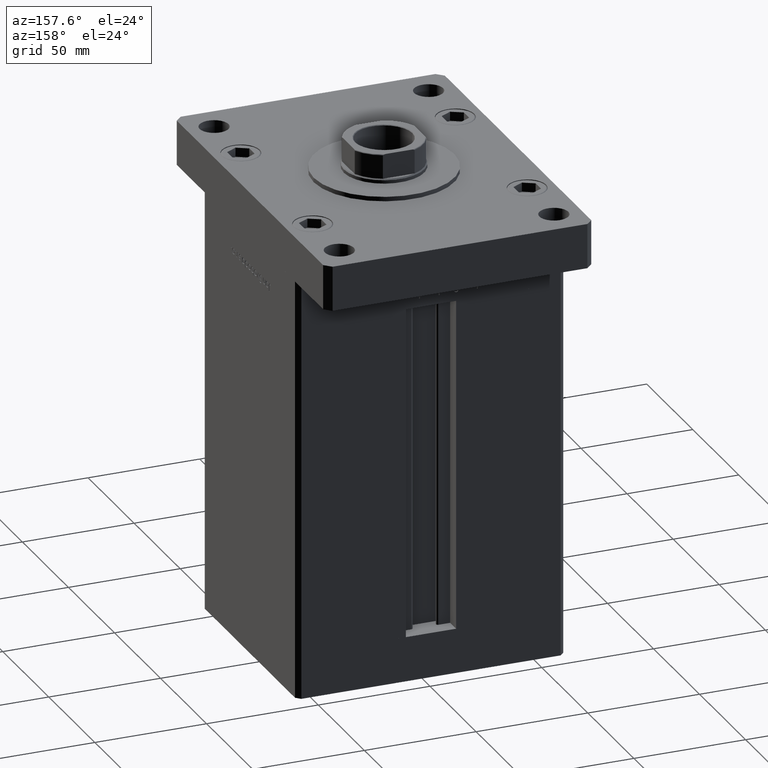
[diagram: clean part render]
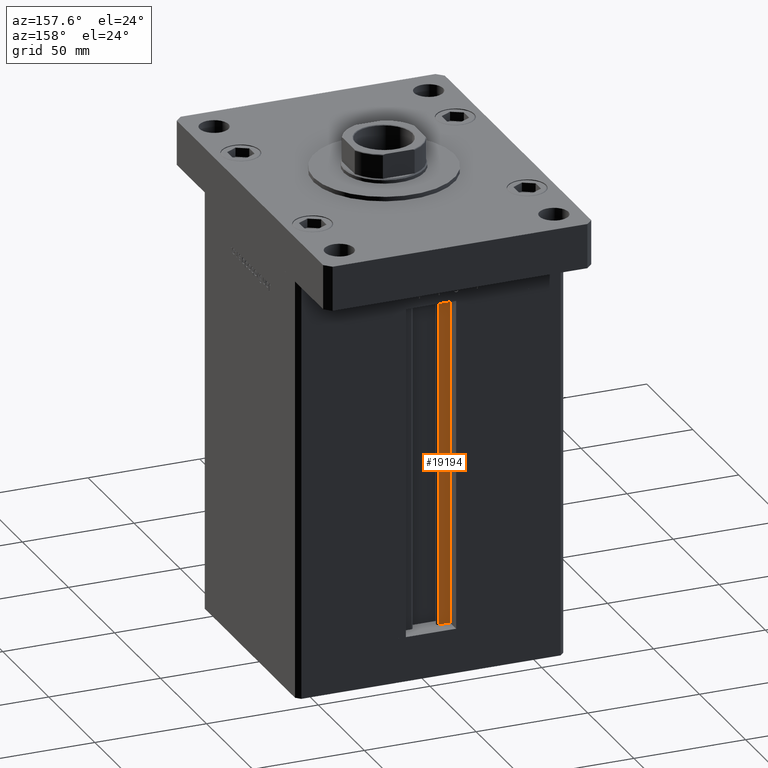
[diagram: same view with one face highlighted and labeled with its STEP entity id]
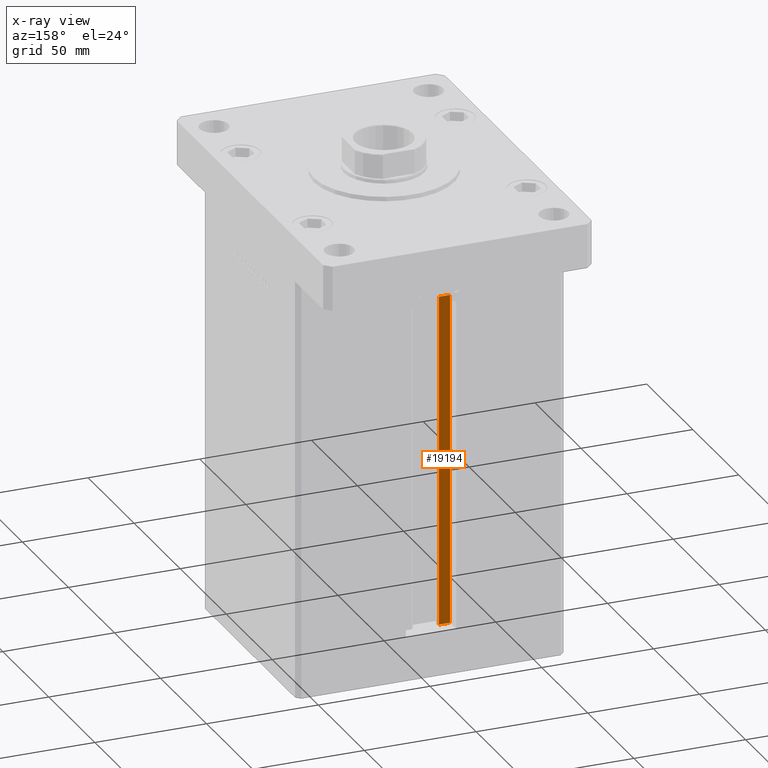
[diagram: x-ray of the same camera — body ghosted, the highlighted face saturated]
A machine part, auxiliary view. The second image highlights one B-rep face of the part: STEP entity #19194.
The next image is the same camera in x-ray: the body ghosted, the highlighted face saturated — about 0% of this face is hidden behind the body in this view.
In plain terms, the highlighted planar face has unit normal (0, -1, 0).
Its self-contained STEP definition (entity closure, byte-faithful):
#337 = VERTEX_POINT ( 'NONE', #6273 ) ;
#747 = DIRECTION ( 'NONE',  ( 0.000000000000000000, -1.000000000000000000, -0.000000000000000000 ) ) ;
#1293 = DIRECTION ( 'NONE',  ( 0.000000000000000000, 0.000000000000000000, -1.000000000000000000 ) ) ;
#1524 = EDGE_CURVE ( 'NONE', #31271, #37693, #30430, .T. ) ;
#5167 = DIRECTION ( 'NONE',  ( -0.000000000000000000, -0.000000000000000000, 1.000000000000000000 ) ) ;
#5675 = DIRECTION ( 'NONE',  ( -0.000000000000000000, -0.000000000000000000, 1.000000000000000000 ) ) ;
#6273 = CARTESIAN_POINT ( 'NONE',  ( -6.183333333334001480, 44.50000000000000000, 148.5000000000000000 ) ) ;
#7406 = LINE ( 'NONE', #27800, #31604 ) ;
#9378 = CARTESIAN_POINT ( 'NONE',  ( -6.183333333334001480, 44.50000000000000000, 0.000000000000000000 ) ) ;
#9461 = FACE_OUTER_BOUND ( 'NONE', #47717, .T. ) ;
#9711 = CARTESIAN_POINT ( 'NONE',  ( -6.183333333334001480, 44.50000000000000000, 0.000000000000000000 ) ) ;
#10117 = ORIENTED_EDGE ( 'NONE', *, *, #1524, .T. ) ;
#13549 = EDGE_CURVE ( 'NONE', #31271, #25774, #22704, .T. ) ;
#14487 = ORIENTED_EDGE ( 'NONE', *, *, #22927, .F. ) ;
#14634 = AXIS2_PLACEMENT_3D ( 'NONE', #42660, #747, #1293 ) ;
#17543 = DIRECTION ( 'NONE',  ( 1.000000000000000000, -0.000000000000000000, -0.000000000000000000 ) ) ;
#19194 = ADVANCED_FACE ( 'NONE', ( #9461 ), #26059, .F. ) ;
#21506 = CARTESIAN_POINT ( 'NONE',  ( -6.183333333334001480, 44.50000000000000000, 0.000000000000000000 ) ) ;
#22704 = LINE ( 'NONE', #9378, #31808 ) ;
#22927 = EDGE_CURVE ( 'NONE', #25774, #337, #29652, .T. ) ;
#23241 = ORIENTED_EDGE ( 'NONE', *, *, #13549, .F. ) ;
#25621 = CARTESIAN_POINT ( 'NONE',  ( -11.25000000000000178, 44.50000000000000000, 0.000000000000000000 ) ) ;
#25774 = VERTEX_POINT ( 'NONE', #9711 ) ;
#25980 = ORIENTED_EDGE ( 'NONE', *, *, #51003, .F. ) ;
#26059 = PLANE ( 'NONE',  #14634 ) ;
#27741 = VECTOR ( 'NONE', #5167, 1000.000000000000000 ) ;
#27800 = CARTESIAN_POINT ( 'NONE',  ( 0.000000000000000000, 44.50000000000000000, 148.5000000000000000 ) ) ;
#29652 = LINE ( 'NONE', #21506, #27741 ) ;
#30430 = LINE ( 'NONE', #42971, #35744 ) ;
#31271 = VERTEX_POINT ( 'NONE', #25621 ) ;
#31604 = VECTOR ( 'NONE', #52317, 1000.000000000000000 ) ;
#31808 = VECTOR ( 'NONE', #17543, 1000.000000000000000 ) ;
#32476 = CARTESIAN_POINT ( 'NONE',  ( -11.25000000000000178, 44.50000000000000000, 148.5000000000000000 ) ) ;
#35744 = VECTOR ( 'NONE', #5675, 1000.000000000000000 ) ;
#37693 = VERTEX_POINT ( 'NONE', #32476 ) ;
#42660 = CARTESIAN_POINT ( 'NONE',  ( -6.183333333334001480, 44.50000000000000000, 0.000000000000000000 ) ) ;
#42971 = CARTESIAN_POINT ( 'NONE',  ( -11.25000000000000178, 44.50000000000000000, 0.000000000000000000 ) ) ;
#47717 = EDGE_LOOP ( 'NONE', ( #14487, #23241, #10117, #25980 ) ) ;
#51003 = EDGE_CURVE ( 'NONE', #337, #37693, #7406, .T. ) ;
#52317 = DIRECTION ( 'NONE',  ( -1.000000000000000000, 0.000000000000000000, 0.000000000000000000 ) ) ;